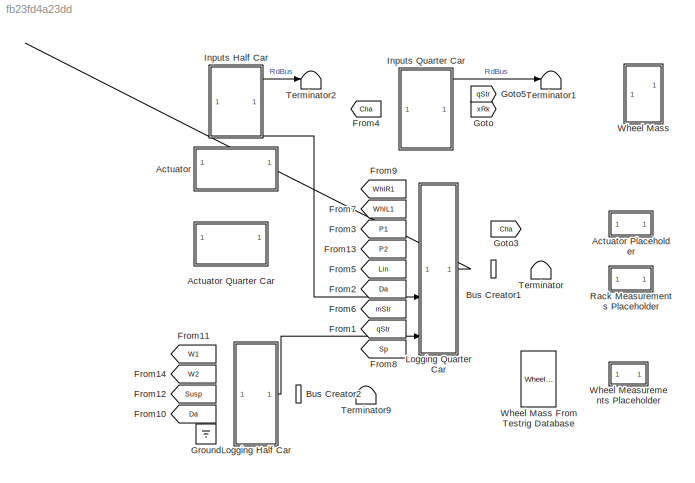
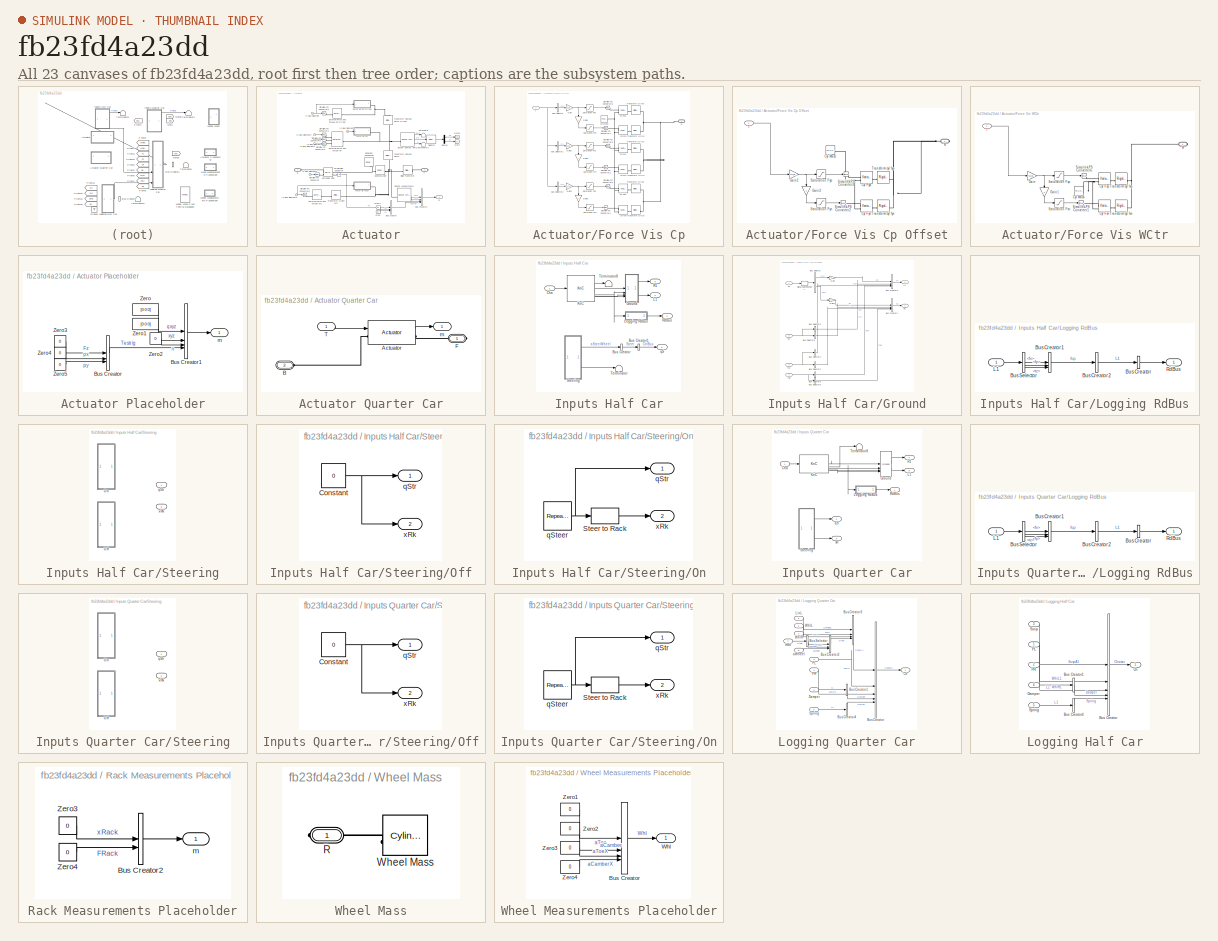
[diagram: thumbnail index - all 23 canvases of the model, root first then tree order]
MODEL slx_fb23fd4a23dd
KIND library
CONFIG AbsTol = auto
CONFIG EnableMultiTasking = off
CONFIG FixedStep = auto
CONFIG MaxStep = auto
CONFIG MinStep = auto
CONFIG RelTol = 1e-3
CONFIG SampleTimeConstraint = Unconstrained
CONFIG SolverName = VariableStepAuto
CONFIG StartTime = 0.0
CONFIG StopTime = 10.0
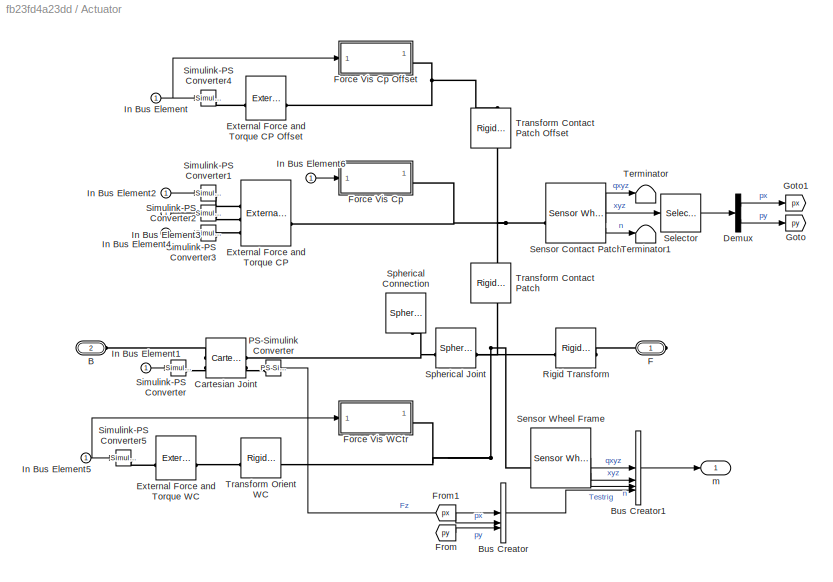
BLOCK [SubSystem] Actuator
BLOCK [SubSystem] Actuator Placeholder
BLOCK [BusCreator] Actuator Placeholder/Bus Creator
  DisplayOption = bar
  InheritFromInputs = on
  Inputs = 3
BLOCK [BusCreator] Actuator Placeholder/Bus Creator1
  DisplayOption = bar
  InheritFromInputs = on
  Inputs = 4
BLOCK [Constant] Actuator Placeholder/Zero
  OutDataTypeStr = Inherit: Inherit via back propagation
  Value = [0 0 0]
BLOCK [Constant] Actuator Placeholder/Zero1
  OutDataTypeStr = Inherit: Inherit via back propagation
  Value = [0 0 0]
BLOCK [Constant] Actuator Placeholder/Zero2
  OutDataTypeStr = Inherit: Inherit via back propagation
  Value = 0
BLOCK [Constant] Actuator Placeholder/Zero3
  OutDataTypeStr = Inherit: Inherit via back propagation
  Value = 0
BLOCK [Constant] Actuator Placeholder/Zero4
  OutDataTypeStr = Inherit: Inherit via back propagation
  Value = 0
BLOCK [Constant] Actuator Placeholder/Zero5
  OutDataTypeStr = Inherit: Inherit via back propagation
  Value = 0
BLOCK [Outport] Actuator Placeholder/m
BLOCK [SubSystem] Actuator Quarter Car
BLOCK [Reference] Actuator Quarter Car/Actuator  REF=$bdroot/Actuator
  SourceBlock = $bdroot/Actuator
  SourceType = KnC Actuator
BLOCK [PMIOPort] Actuator Quarter Car/B
  Port = 2
  Side = Left
BLOCK [PMIOPort] Actuator Quarter Car/F
  Side = Right
BLOCK [Inport] Actuator Quarter Car/T
BLOCK [Outport] Actuator Quarter Car/m
BLOCK [PMIOPort] Actuator/B
  Port = 2
  Side = Left
BLOCK [BusCreator] Actuator/Bus Creator
  DisplayOption = bar
  InheritFromInputs = on
  Inputs = 3
BLOCK [BusCreator] Actuator/Bus Creator1
  DisplayOption = bar
  InheritFromInputs = on
  Inputs = 4
BLOCK [Reference] Actuator/Cartesian Joint  REF=sm_lib/Joints/Cartesian
Joint
  SourceBlock = sm_lib/Joints/Cartesian\nJoint
  SourceType = Cartesian\nJoint
BLOCK [Demux] Actuator/Demux
  Outputs = 2
BLOCK [Reference] Actuator/External Force and Torque CP  REF=sm_lib/Forces and
Torques/External Force
and Torque
  SourceBlock = sm_lib/Forces and\nTorques/External Force\nand Torque
  SourceType = External Force\nand Torque
BLOCK [Reference] Actuator/External Force and Torque CP Offset  REF=sm_lib/Forces and
Torques/External Force
and Torque
  SourceBlock = sm_lib/Forces and\nTorques/External Force\nand Torque
  SourceType = External Force\nand Torque
BLOCK [Reference] Actuator/External Force and Torque WC  REF=sm_lib/Forces and
Torques/External Force
and Torque
  SourceBlock = sm_lib/Forces and\nTorques/External Force\nand Torque
  SourceType = External Force\nand Torque
BLOCK [PMIOPort] Actuator/F
  Side = Right
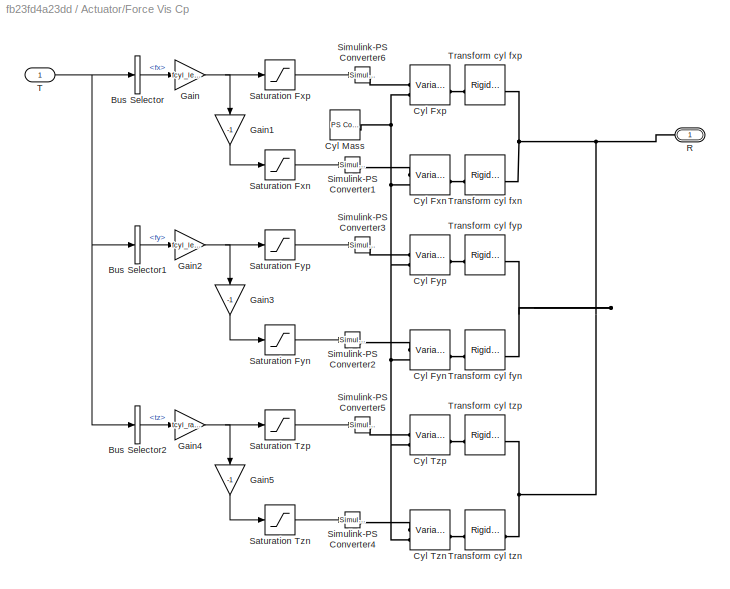
BLOCK [SubSystem] Actuator/Force Vis Cp
BLOCK [SubSystem] Actuator/Force Vis Cp Offset
BLOCK [Reference] Actuator/Force Vis Cp Offset/Cyl Fyn  REF=sm_lib/Body Elements/Variable Mass/Variable
Cylindrical Solid
  SourceBlock = sm_lib/Body Elements/Variable Mass/Variable\nCylindrical Solid
  SourceType = Variable\nCylindrical Solid
BLOCK [Reference] Actuator/Force Vis Cp Offset/Cyl Fyp  REF=sm_lib/Body Elements/Variable Mass/Variable
Cylindrical Solid
  SourceBlock = sm_lib/Body Elements/Variable Mass/Variable\nCylindrical Solid
  SourceType = Variable\nCylindrical Solid
BLOCK [Reference] Actuator/Force Vis Cp Offset/Cyl Mass  REF=fl_lib/Physical Signals/Sources/PS Constant
  NameLocation = left
  SourceBlock = fl_lib/Physical Signals/Sources/PS Constant
  SourceType = PS Constant
BLOCK [Gain] Actuator/Force Vis Cp Offset/Gain2
  Gain = fcyl_len/max(fy_max,1e-3)
BLOCK [Gain] Actuator/Force Vis Cp Offset/Gain3
  Gain = -1
  NameLocation = left
BLOCK [PMIOPort] Actuator/Force Vis Cp Offset/R
  Side = Right
BLOCK [Saturate] Actuator/Force Vis Cp Offset/Saturation Fyn
  LowerLimit = 0
  UpperLimit = inf
  ZeroCross = off
BLOCK [Saturate] Actuator/Force Vis Cp Offset/Saturation Fyp
  LowerLimit = 0
  UpperLimit = inf
  ZeroCross = off
BLOCK [Reference] Actuator/Force Vis Cp Offset/Simulink-PS Converter2  REF=nesl_utility/Simulink-PS
Converter
  SourceBlock = nesl_utility/Simulink-PS\nConverter
  SourceType = Simulink-PS\nConverter
BLOCK [Reference] Actuator/Force Vis Cp Offset/Simulink-PS Converter3  REF=nesl_utility/Simulink-PS
Converter
  SourceBlock = nesl_utility/Simulink-PS\nConverter
  SourceType = Simulink-PS\nConverter
BLOCK [Inport] Actuator/Force Vis Cp Offset/T
BLOCK [Reference] Actuator/Force Vis Cp Offset/Transform cyl fyn  REF=sm_lib/Frames and
Transforms/Rigid
Transform
  SourceBlock = sm_lib/Frames and\nTransforms/Rigid\nTransform
  SourceType = Rigid\nTransform
BLOCK [Reference] Actuator/Force Vis Cp Offset/Transform cyl fyp  REF=sm_lib/Frames and
Transforms/Rigid
Transform
  SourceBlock = sm_lib/Frames and\nTransforms/Rigid\nTransform
  SourceType = Rigid\nTransform
BLOCK [BusSelector] Actuator/Force Vis Cp/Bus Selector
  OutputSignals = fcp.fx
BLOCK [BusSelector] Actuator/Force Vis Cp/Bus Selector1
  OutputSignals = fcp.fy
BLOCK [BusSelector] Actuator/Force Vis Cp/Bus Selector2
  OutputSignals = fcp.tz
BLOCK [Reference] Actuator/Force Vis Cp/Cyl Fxn  REF=sm_lib/Body Elements/Variable Mass/Variable
Cylindrical Solid
  SourceBlock = sm_lib/Body Elements/Variable Mass/Variable\nCylindrical Solid
  SourceType = Variable\nCylindrical Solid
BLOCK [Reference] Actuator/Force Vis Cp/Cyl Fxp  REF=sm_lib/Body Elements/Variable Mass/Variable
Cylindrical Solid
  SourceBlock = sm_lib/Body Elements/Variable Mass/Variable\nCylindrical Solid
  SourceType = Variable\nCylindrical Solid
BLOCK [Reference] Actuator/Force Vis Cp/Cyl Fyn  REF=sm_lib/Body Elements/Variable Mass/Variable
Cylindrical Solid
  SourceBlock = sm_lib/Body Elements/Variable Mass/Variable\nCylindrical Solid
  SourceType = Variable\nCylindrical Solid
BLOCK [Reference] Actuator/Force Vis Cp/Cyl Fyp  REF=sm_lib/Body Elements/Variable Mass/Variable
Cylindrical Solid
  SourceBlock = sm_lib/Body Elements/Variable Mass/Variable\nCylindrical Solid
  SourceType = Variable\nCylindrical Solid
BLOCK [Reference] Actuator/Force Vis Cp/Cyl Mass  REF=fl_lib/Physical Signals/Sources/PS Constant
  NameLocation = left
  SourceBlock = fl_lib/Physical Signals/Sources/PS Constant
  SourceType = PS Constant
BLOCK [Reference] Actuator/Force Vis Cp/Cyl Tzn  REF=sm_lib/Body Elements/Variable Mass/Variable
Cylindrical Solid
  SourceBlock = sm_lib/Body Elements/Variable Mass/Variable\nCylindrical Solid
  SourceType = Variable\nCylindrical Solid
BLOCK [Reference] Actuator/Force Vis Cp/Cyl Tzp  REF=sm_lib/Body Elements/Variable Mass/Variable
Cylindrical Solid
  SourceBlock = sm_lib/Body Elements/Variable Mass/Variable\nCylindrical Solid
  SourceType = Variable\nCylindrical Solid
BLOCK [Gain] Actuator/Force Vis Cp/Gain
  Gain = fcyl_len/max(max_fx,1e-3)
BLOCK [Gain] Actuator/Force Vis Cp/Gain1
  Gain = -1
  NameLocation = left
BLOCK [Gain] Actuator/Force Vis Cp/Gain2
  Gain = fcyl_len/max(max_fy,1e-3)
BLOCK [Gain] Actuator/Force Vis Cp/Gain3
  Gain = -1
  NameLocation = left
BLOCK [Gain] Actuator/Force Vis Cp/Gain4
  Gain = tcyl_rad/max(max_tz,1e-3)
BLOCK [Gain] Actuator/Force Vis Cp/Gain5
  Gain = -1
  NameLocation = left
BLOCK [PMIOPort] Actuator/Force Vis Cp/R
  Side = Right
BLOCK [Saturate] Actuator/Force Vis Cp/Saturation Fxn
  LowerLimit = 0
  UpperLimit = inf
  ZeroCross = off
BLOCK [Saturate] Actuator/Force Vis Cp/Saturation Fxp
  LowerLimit = 0
  UpperLimit = inf
  ZeroCross = off
BLOCK [Saturate] Actuator/Force Vis Cp/Saturation Fyn
  LowerLimit = 0
  UpperLimit = inf
  ZeroCross = off
BLOCK [Saturate] Actuator/Force Vis Cp/Saturation Fyp
  LowerLimit = 0
  UpperLimit = inf
  ZeroCross = off
BLOCK [Saturate] Actuator/Force Vis Cp/Saturation Tzn
  LowerLimit = 0
  UpperLimit = inf
  ZeroCross = off
BLOCK [Saturate] Actuator/Force Vis Cp/Saturation Tzp
  LowerLimit = 0
  UpperLimit = inf
  ZeroCross = off
BLOCK [Reference] Actuator/Force Vis Cp/Simulink-PS Converter1  REF=nesl_utility/Simulink-PS
Converter
  SourceBlock = nesl_utility/Simulink-PS\nConverter
  SourceType = Simulink-PS\nConverter
BLOCK [Reference] Actuator/Force Vis Cp/Simulink-PS Converter2  REF=nesl_utility/Simulink-PS
Converter
  SourceBlock = nesl_utility/Simulink-PS\nConverter
  SourceType = Simulink-PS\nConverter
BLOCK [Reference] Actuator/Force Vis Cp/Simulink-PS Converter3  REF=nesl_utility/Simulink-PS
Converter
  SourceBlock = nesl_utility/Simulink-PS\nConverter
  SourceType = Simulink-PS\nConverter
BLOCK [Reference] Actuator/Force Vis Cp/Simulink-PS Converter4  REF=nesl_utility/Simulink-PS
Converter
  SourceBlock = nesl_utility/Simulink-PS\nConverter
  SourceType = Simulink-PS\nConverter
BLOCK [Reference] Actuator/Force Vis Cp/Simulink-PS Converter5  REF=nesl_utility/Simulink-PS
Converter
  SourceBlock = nesl_utility/Simulink-PS\nConverter
  SourceType = Simulink-PS\nConverter
BLOCK [Reference] Actuator/Force Vis Cp/Simulink-PS Converter6  REF=nesl_utility/Simulink-PS
Converter
  SourceBlock = nesl_utility/Simulink-PS\nConverter
  SourceType = Simulink-PS\nConverter
BLOCK [Inport] Actuator/Force Vis Cp/T
BLOCK [Reference] Actuator/Force Vis Cp/Transform cyl fxn  REF=sm_lib/Frames and
Transforms/Rigid
Transform
  SourceBlock = sm_lib/Frames and\nTransforms/Rigid\nTransform
  SourceType = Rigid\nTransform
BLOCK [Reference] Actuator/Force Vis Cp/Transform cyl fxp  REF=sm_lib/Frames and
Transforms/Rigid
Transform
  SourceBlock = sm_lib/Frames and\nTransforms/Rigid\nTransform
  SourceType = Rigid\nTransform
BLOCK [Reference] Actuator/Force Vis Cp/Transform cyl fyn  REF=sm_lib/Frames and
Transforms/Rigid
Transform
  SourceBlock = sm_lib/Frames and\nTransforms/Rigid\nTransform
  SourceType = Rigid\nTransform
BLOCK [Reference] Actuator/Force Vis Cp/Transform cyl fyp  REF=sm_lib/Frames and
Transforms/Rigid
Transform
  SourceBlock = sm_lib/Frames and\nTransforms/Rigid\nTransform
  SourceType = Rigid\nTransform
BLOCK [Reference] Actuator/Force Vis Cp/Transform cyl tzn  REF=sm_lib/Frames and
Transforms/Rigid
Transform
  SourceBlock = sm_lib/Frames and\nTransforms/Rigid\nTransform
  SourceType = Rigid\nTransform
BLOCK [Reference] Actuator/Force Vis Cp/Transform cyl tzp  REF=sm_lib/Frames and
Transforms/Rigid
Transform
  SourceBlock = sm_lib/Frames and\nTransforms/Rigid\nTransform
  SourceType = Rigid\nTransform
BLOCK [SubSystem] Actuator/Force Vis WCtr
BLOCK [Reference] Actuator/Force Vis WCtr/Cyl Fxn  REF=sm_lib/Body Elements/Variable Mass/Variable
Cylindrical Solid
  SourceBlock = sm_lib/Body Elements/Variable Mass/Variable\nCylindrical Solid
  SourceType = Variable\nCylindrical Solid
BLOCK [Reference] Actuator/Force Vis WCtr/Cyl Fxp  REF=sm_lib/Body Elements/Variable Mass/Variable
Cylindrical Solid
  SourceBlock = sm_lib/Body Elements/Variable Mass/Variable\nCylindrical Solid
  SourceType = Variable\nCylindrical Solid
BLOCK [Reference] Actuator/Force Vis WCtr/Cyl Mass  REF=fl_lib/Physical Signals/Sources/PS Constant
  NameLocation = left
  SourceBlock = fl_lib/Physical Signals/Sources/PS Constant
  SourceType = PS Constant
BLOCK [Gain] Actuator/Force Vis WCtr/Gain
  Gain = fcyl_len/max(max_fx,1e-3)
BLOCK [Gain] Actuator/Force Vis WCtr/Gain1
  Gain = -1
  NameLocation = left
BLOCK [PMIOPort] Actuator/Force Vis WCtr/R
  Side = Right
BLOCK [Saturate] Actuator/Force Vis WCtr/Saturation Fxn
  LowerLimit = 0
  UpperLimit = inf
  ZeroCross = off
BLOCK [Saturate] Actuator/Force Vis WCtr/Saturation Fxp
  LowerLimit = 0
  UpperLimit = inf
  ZeroCross = off
BLOCK [Reference] Actuator/Force Vis WCtr/Simulink-PS Converter1  REF=nesl_utility/Simulink-PS
Converter
  SourceBlock = nesl_utility/Simulink-PS\nConverter
  SourceType = Simulink-PS\nConverter
BLOCK [Reference] Actuator/Force Vis WCtr/Simulink-PS Converter6  REF=nesl_utility/Simulink-PS
Converter
  SourceBlock = nesl_utility/Simulink-PS\nConverter
  SourceType = Simulink-PS\nConverter
BLOCK [Inport] Actuator/Force Vis WCtr/T
BLOCK [Reference] Actuator/Force Vis WCtr/Transform cyl fxn  REF=sm_lib/Frames and
Transforms/Rigid
Transform
  SourceBlock = sm_lib/Frames and\nTransforms/Rigid\nTransform
  SourceType = Rigid\nTransform
BLOCK [Reference] Actuator/Force Vis WCtr/Transform cyl fxp  REF=sm_lib/Frames and
Transforms/Rigid
Transform
  SourceBlock = sm_lib/Frames and\nTransforms/Rigid\nTransform
  SourceType = Rigid\nTransform
BLOCK [From] Actuator/From
  GotoTag = py
BLOCK [From] Actuator/From1
  GotoTag = px
BLOCK [Goto] Actuator/Goto
  GotoTag = py
BLOCK [Goto] Actuator/Goto1
  GotoTag = px
BLOCK [Inport] Actuator/In Bus Element
BLOCK [Inport] Actuator/In Bus Element1
BLOCK [Inport] Actuator/In Bus Element2
BLOCK [Inport] Actuator/In Bus Element3
BLOCK [Inport] Actuator/In Bus Element4
BLOCK [Inport] Actuator/In Bus Element5
BLOCK [Inport] Actuator/In Bus Element6
BLOCK [Reference] Actuator/PS-Simulink Converter  REF=nesl_utility/PS-Simulink
Converter
  SourceBlock = nesl_utility/PS-Simulink\nConverter
  SourceType = PS-Simulink\nConverter
BLOCK [Reference] Actuator/Rigid Transform  REF=sm_lib/Frames and
Transforms/Rigid
Transform
  SourceBlock = sm_lib/Frames and\nTransforms/Rigid\nTransform
  SourceType = Rigid\nTransform
BLOCK [Selector] Actuator/Selector
  IndexOptions = Index vector (dialog)
  Indices = [1 2]
  InputPortWidth = 3
  OutputSizes = 1
BLOCK [Reference] Actuator/Sensor Contact Patch  REF=Tire_Utilities/Sensor Wheel Frame
  NameLocation = top
  SourceBlock = Tire_Utilities/Sensor Wheel Frame
  SourceType = SubSystem
BLOCK [Reference] Actuator/Sensor Wheel Frame  REF=Tire_Utilities/Sensor Wheel Frame
  NameLocation = top
  SourceBlock = Tire_Utilities/Sensor Wheel Frame
  SourceType = SubSystem
BLOCK [Reference] Actuator/Simulink-PS Converter  REF=nesl_utility/Simulink-PS
Converter
  SourceBlock = nesl_utility/Simulink-PS\nConverter
  SourceType = Simulink-PS\nConverter
BLOCK [Reference] Actuator/Simulink-PS Converter1  REF=nesl_utility/Simulink-PS
Converter
  SourceBlock = nesl_utility/Simulink-PS\nConverter
  SourceType = Simulink-PS\nConverter
BLOCK [Reference] Actuator/Simulink-PS Converter2  REF=nesl_utility/Simulink-PS
Converter
  SourceBlock = nesl_utility/Simulink-PS\nConverter
  SourceType = Simulink-PS\nConverter
BLOCK [Reference] Actuator/Simulink-PS Converter3  REF=nesl_utility/Simulink-PS
Converter
  SourceBlock = nesl_utility/Simulink-PS\nConverter
  SourceType = Simulink-PS\nConverter
BLOCK [Reference] Actuator/Simulink-PS Converter4  REF=nesl_utility/Simulink-PS
Converter
  SourceBlock = nesl_utility/Simulink-PS\nConverter
  SourceType = Simulink-PS\nConverter
BLOCK [Reference] Actuator/Simulink-PS Converter5  REF=nesl_utility/Simulink-PS
Converter
  SourceBlock = nesl_utility/Simulink-PS\nConverter
  SourceType = Simulink-PS\nConverter
BLOCK [Reference] Actuator/Spherical Connection  REF=sm_lib/Body Elements/Spherical Solid
  NameLocation = left
  SourceBlock = sm_lib/Body Elements/Spherical Solid
  SourceType = Spherical Solid
BLOCK [Reference] Actuator/Spherical Joint  REF=sm_lib/Joints/Spherical
Joint
  SourceBlock = sm_lib/Joints/Spherical\nJoint
  SourceType = Spherical\nJoint
BLOCK [Terminator] Actuator/Terminator
BLOCK [Terminator] Actuator/Terminator1
BLOCK [Reference] Actuator/Transform Contact Patch  REF=sm_lib/Frames and
Transforms/Rigid
Transform
  NameLocation = right
  SourceBlock = sm_lib/Frames and\nTransforms/Rigid\nTransform
  SourceType = Rigid\nTransform
BLOCK [Reference] Actuator/Transform Contact Patch Offset  REF=sm_lib/Frames and
Transforms/Rigid
Transform
  NameLocation = right
  SourceBlock = sm_lib/Frames and\nTransforms/Rigid\nTransform
  SourceType = Rigid\nTransform
BLOCK [Reference] Actuator/Transform Orient WC  REF=sm_lib/Frames and
Transforms/Rigid
Transform
  SourceBlock = sm_lib/Frames and\nTransforms/Rigid\nTransform
  SourceType = Rigid\nTransform
BLOCK [Outport] Actuator/m
  VectorParamsAs1DForOutWhenUnconnected = off
BLOCK [BusCreator] Bus Creator1
  DisplayOption = bar
  InheritFromInputs = on
  Inputs = 1
  NameLocation = left
BLOCK [BusCreator] Bus Creator2
  DisplayOption = bar
  InheritFromInputs = on
  Inputs = 1
BLOCK [From] From1
  GotoTag = qStr
BLOCK [From] From10
  GotoTag = Da
BLOCK [From] From11
  GotoTag = W1
BLOCK [From] From12
  GotoTag = Susp
BLOCK [From] From13
  GotoTag = P2
BLOCK [From] From14
  GotoTag = W2
BLOCK [From] From2
  GotoTag = Da
BLOCK [From] From3
  GotoTag = P1
BLOCK [From] From4
  GotoTag = Cha
BLOCK [From] From5
  GotoTag = Lin
BLOCK [From] From6
  GotoTag = mStr
BLOCK [From] From7
  GotoTag = WhlL1
BLOCK [From] From8
  GotoTag = Sp
BLOCK [From] From9
  GotoTag = WhlR1
BLOCK [Goto] Goto
  GotoTag = xRk
BLOCK [Goto] Goto3
  GotoTag = Cha
BLOCK [Goto] Goto5
  GotoTag = qStr
  NameLocation = top
BLOCK [Ground] Ground
BLOCK [SubSystem] Inputs Half Car
  NameLocation = top
BLOCK [BusCreator] Inputs Half Car/Bus Creator
  DisplayOption = bar
  InheritFromInputs = on
  Inputs = 1
BLOCK [BusCreator] Inputs Half Car/Bus Creator1
  DisplayOption = bar
  InheritFromInputs = on
  Inputs = 1
BLOCK [Inport] Inputs Half Car/Cha
BLOCK [SubSystem] Inputs Half Car/Ground
BLOCK [BusCreator] Inputs Half Car/Ground/Bus Creator1
  DisplayOption = bar
  InheritFromInputs = on
  Inputs = 4
BLOCK [BusCreator] Inputs Half Car/Ground/Bus Creator3
  DisplayOption = bar
  InheritFromInputs = on
  Inputs = 4
BLOCK [BusSelector] Inputs Half Car/Ground/Bus Selector
  OutputSignals = L1,R1
BLOCK [BusSelector] Inputs Half Car/Ground/Bus Selector1
  OutputAsBus = on
  OutputSignals = L1.fcoy
BLOCK [BusSelector] Inputs Half Car/Ground/Bus Selector2
  OutputAsBus = on
  OutputSignals = L1.fx,L1.fy,L1.tz
BLOCK [BusSelector] Inputs Half Car/Ground/Bus Selector3
  OutputAsBus = on
  OutputSignals = R1.fx,R1.fy,R1.tz
BLOCK [BusSelector] Inputs Half Car/Ground/Bus Selector4
  OutputAsBus = on
  OutputSignals = R1.fcoy
BLOCK [BusSelector] Inputs Half Car/Ground/Bus Selector5
  OutputAsBus = on
  OutputSignals = L1.fwcx
BLOCK [BusSelector] Inputs Half Car/Ground/Bus Selector6
  OutputAsBus = on
  OutputSignals = R1.fwcx
BLOCK [Gain] Inputs Half Car/Ground/Gain
BLOCK [Gain] Inputs Half Car/Ground/Gain1
BLOCK [Outport] Inputs Half Car/Ground/L1
  Port = 2
  VectorParamsAs1DForOutWhenUnconnected = off
BLOCK [Outport] Inputs Half Car/Ground/R1
  VectorParamsAs1DForOutWhenUnconnected = off
BLOCK [SignalSpecification] Inputs Half Car/Ground/Signal Specification1
  Unit = m
BLOCK [Inport] Inputs Half Car/Ground/fco
  Port = 3
BLOCK [Inport] Inputs Half Car/Ground/fcp
  Port = 2
BLOCK [Inport] Inputs Half Car/Ground/fwc
  Port = 4
BLOCK [Inport] Inputs Half Car/Ground/gz
BLOCK [Reference] Inputs Half Car/KnC  REF=Surface_Profile_Axle2_KnC/KnC
  SourceBlock = Surface_Profile_Axle2_KnC/KnC
  SourceType = SubSystem
BLOCK [Outport] Inputs Half Car/L1
  Port = 4
BLOCK [SubSystem] Inputs Half Car/Logging RdBus
BLOCK [BusCreator] Inputs Half Car/Logging RdBus/Bus Creator
  DisplayOption = bar
  InheritFromInputs = on
  Inputs = 1
  NameLocation = top
BLOCK [BusCreator] Inputs Half Car/Logging RdBus/Bus Creator1
  DisplayOption = bar
  InheritFromInputs = on
  Inputs = 3
BLOCK [BusCreator] Inputs Half Car/Logging RdBus/Bus Creator2
  DisplayOption = bar
  InheritFromInputs = on
  Inputs = 1
  NameLocation = top
BLOCK [BusSelector] Inputs Half Car/Logging RdBus/Bus Selector
  OutputSignals = L1.fx,L1.fy,L1.tz
BLOCK [Inport] Inputs Half Car/Logging RdBus/L1
BLOCK [Outport] Inputs Half Car/Logging RdBus/RdBus
BLOCK [Outport] Inputs Half Car/R1
  Port = 3
BLOCK [Outport] Inputs Half Car/RdBus
BLOCK [SubSystem] Inputs Half Car/Steering
  LabelModeActiveChoice = On
  Variant = on
  VariantControl = Choice
  VariantControlMode = label
BLOCK [SubSystem] Inputs Half Car/Steering/Off
  VariantControl = Off
BLOCK [Constant] Inputs Half Car/Steering/Off/Constant
  Value = 0
BLOCK [Outport] Inputs Half Car/Steering/Off/qStr
BLOCK [Outport] Inputs Half Car/Steering/Off/xRk
  Port = 2
BLOCK [SubSystem] Inputs Half Car/Steering/On
  VariantControl = On
BLOCK [Lookup_n-D] Inputs Half Car/Steering/On/Steer to Rack
  BreakpointsForDimension1 = Vehicle.Chassis.SuspA1.Steer.Ratio_Table.aWheel.Value
  InputPortMap = u0
  InternalRulePriority = Speed
  NumberOfTableDimensions = 1
  RndMeth = Simplest
  Table = Vehicle.Chassis.SuspA1.Steer.Ratio_Table.xRack.Value
BLOCK [Reference] Inputs Half Car/Steering/On/qSteer  REF=simulink/Sources/Repeating
Sequence
  SourceBlock = simulink/Sources/Repeating\nSequence
  SourceType = Repeating table
BLOCK [Outport] Inputs Half Car/Steering/On/qStr
BLOCK [Outport] Inputs Half Car/Steering/On/xRk
  Port = 2
BLOCK [Outport] Inputs Half Car/Steering/qStr
BLOCK [Outport] Inputs Half Car/Steering/xRk
  Port = 2
BLOCK [Terminator] Inputs Half Car/Terminator
BLOCK [Terminator] Inputs Half Car/Terminator8
BLOCK [Outport] Inputs Half Car/qS
  Port = 2
BLOCK [SubSystem] Inputs Quarter Car
  NameLocation = top
BLOCK [Inport] Inputs Quarter Car/Cha
BLOCK [Reference] Inputs Quarter Car/Ground  REF=$bdroot/Inputs Half Car/Ground
  SourceBlock = $bdroot/Inputs Half Car/Ground
  SourceType = SubSystem
BLOCK [Reference] Inputs Quarter Car/KnC  REF=Surface_Profile_Axle2_KnC/KnC
  SourceBlock = Surface_Profile_Axle2_KnC/KnC
  SourceType = SubSystem
BLOCK [Outport] Inputs Quarter Car/L1
  Port = 5
BLOCK [SubSystem] Inputs Quarter Car/Logging RdBus
BLOCK [BusCreator] Inputs Quarter Car/Logging RdBus/Bus Creator
  DisplayOption = bar
  InheritFromInputs = on
  Inputs = 1
  NameLocation = top
BLOCK [BusCreator] Inputs Quarter Car/Logging RdBus/Bus Creator1
  DisplayOption = bar
  InheritFromInputs = on
  Inputs = 3
BLOCK [BusCreator] Inputs Quarter Car/Logging RdBus/Bus Creator2
  DisplayOption = bar
  InheritFromInputs = on
  Inputs = 1
  NameLocation = top
BLOCK [BusSelector] Inputs Quarter Car/Logging RdBus/Bus Selector
  OutputSignals = L1.fx,L1.fy,L1.tz
BLOCK [Inport] Inputs Quarter Car/Logging RdBus/L1
BLOCK [Outport] Inputs Quarter Car/Logging RdBus/RdBus
BLOCK [Outport] Inputs Quarter Car/R1
  Port = 4
BLOCK [Outport] Inputs Quarter Car/RdBus
BLOCK [SubSystem] Inputs Quarter Car/Steering
  LabelModeActiveChoice = On
  Variant = on
  VariantControl = Choice
  VariantControlMode = label
BLOCK [SubSystem] Inputs Quarter Car/Steering/Off
  VariantControl = Off
BLOCK [Constant] Inputs Quarter Car/Steering/Off/Constant
  Value = 0
BLOCK [Outport] Inputs Quarter Car/Steering/Off/qStr
BLOCK [Outport] Inputs Quarter Car/Steering/Off/xRk
  Port = 2
BLOCK [SubSystem] Inputs Quarter Car/Steering/On
  VariantControl = On
BLOCK [Lookup_n-D] Inputs Quarter Car/Steering/On/Steer to Rack
  BreakpointsForDimension1 = Vehicle.Chassis.SuspA1.Steer.Ratio_Table.aWheel.Value
  InputPortMap = u0
  InternalRulePriority = Speed
  NumberOfTableDimensions = 1
  RndMeth = Simplest
  Table = Vehicle.Chassis.SuspA1.Steer.Ratio_Table.xRack.Value
BLOCK [Reference] Inputs Quarter Car/Steering/On/qSteer  REF=simulink/Sources/Repeating
Sequence
  SourceBlock = simulink/Sources/Repeating\nSequence
  SourceType = Repeating table
BLOCK [Outport] Inputs Quarter Car/Steering/On/qStr
BLOCK [Outport] Inputs Quarter Car/Steering/On/xRk
  Port = 2
BLOCK [Outport] Inputs Quarter Car/Steering/qStr
BLOCK [Outport] Inputs Quarter Car/Steering/xRk
  Port = 2
BLOCK [Terminator] Inputs Quarter Car/Terminator8
BLOCK [Outport] Inputs Quarter Car/qS
  Port = 2
BLOCK [Outport] Inputs Quarter Car/xR
  Port = 3
BLOCK [SubSystem] Logging Half Car
BLOCK [BusCreator] Logging Half Car/Bus Creator
  DisplayOption = bar
  InheritFromInputs = on
  Inputs = 5
BLOCK [BusCreator] Logging Half Car/Bus Creator1
  DisplayOption = bar
  InheritFromInputs = on
  Inputs = 1
BLOCK [BusCreator] Logging Half Car/Bus Creator4
  DisplayOption = bar
  InheritFromInputs = on
  Inputs = 1
BLOCK [Outport] Logging Half Car/Ch
BLOCK [Inport] Logging Half Car/Damper
  Port = 4
BLOCK [Inport] Logging Half Car/PL
BLOCK [Inport] Logging Half Car/PR
  Port = 2
BLOCK [Inport] Logging Half Car/Spring
  Port = 5
BLOCK [Inport] Logging Half Car/Susp
  NameLocation = left
  Port = 3
BLOCK [SubSystem] Logging Quarter Car
BLOCK [BusCreator] Logging Quarter Car/Bus Creator
  DisplayOption = bar
  InheritFromInputs = on
  Inputs = 5
BLOCK [BusCreator] Logging Quarter Car/Bus Creator1
  DisplayOption = bar
  InheritFromInputs = on
  Inputs = 1
BLOCK [BusCreator] Logging Quarter Car/Bus Creator2
  DisplayOption = bar
  InheritFromInputs = on
  Inputs = 3
BLOCK [BusCreator] Logging Quarter Car/Bus Creator3
  DisplayOption = bar
  InheritFromInputs = on
  Inputs = 4
BLOCK [BusCreator] Logging Quarter Car/Bus Creator4
  DisplayOption = bar
  InheritFromInputs = on
  Inputs = 1
BLOCK [BusSelector] Logging Quarter Car/Bus Selector
  OutputSignals = xRack,FRack
BLOCK [Outport] Logging Quarter Car/Ch
BLOCK [Inport] Logging Quarter Car/Damper
  Port = 6
BLOCK [Inport] Logging Quarter Car/LinL
  NameLocation = left
  Port = 5
BLOCK [Inport] Logging Quarter Car/PL
  NameLocation = left
  Port = 3
BLOCK [Inport] Logging Quarter Car/PR
  NameLocation = left
  Port = 4
BLOCK [Inport] Logging Quarter Car/Spring
  Port = 9
BLOCK [Inport] Logging Quarter Car/WhlL
  NameLocation = left
  Port = 2
BLOCK [Inport] Logging Quarter Car/WhlR
  NameLocation = left
BLOCK [Inport] Logging Quarter Car/aWheel
  NameLocation = left
  Port = 8
BLOCK [Inport] Logging Quarter Car/mStr
  NameLocation = left
  Port = 7
BLOCK [SubSystem] Rack Measurements Placeholder
BLOCK [BusCreator] Rack Measurements Placeholder/Bus Creator2
  DisplayOption = bar
  InheritFromInputs = on
  Inputs = 2
BLOCK [Constant] Rack Measurements Placeholder/Zero3
  OutDataTypeStr = Inherit: Inherit via back propagation
  Value = 0
BLOCK [Constant] Rack Measurements Placeholder/Zero4
  OutDataTypeStr = Inherit: Inherit via back propagation
  Value = 0
BLOCK [Outport] Rack Measurements Placeholder/m
BLOCK [Terminator] Terminator
BLOCK [Terminator] Terminator1
BLOCK [Terminator] Terminator2
BLOCK [Terminator] Terminator9
BLOCK [SubSystem] Wheel Mass
BLOCK [Reference] Wheel Mass From Testrig Database  REF=$bdroot/Wheel Mass
  Commented = on
  SourceBlock = $bdroot/Wheel Mass
BLOCK [PMIOPort] Wheel Mass/R
  Side = Right
BLOCK [Reference] Wheel Mass/Wheel Mass  REF=sm_lib/Body Elements/Cylindrical Solid
  SourceBlock = sm_lib/Body Elements/Cylindrical Solid
  SourceType = Cylindrical Solid
BLOCK [SubSystem] Wheel Measurements Placeholder
BLOCK [BusCreator] Wheel Measurements Placeholder/Bus Creator
  DisplayOption = bar
  InheritFromInputs = on
  Inputs = 4
BLOCK [Outport] Wheel Measurements Placeholder/Whl
BLOCK [Constant] Wheel Measurements Placeholder/Zero1
  OutDataTypeStr = Inherit: Inherit via back propagation
  Value = 0
BLOCK [Constant] Wheel Measurements Placeholder/Zero2
  OutDataTypeStr = Inherit: Inherit via back propagation
  Value = 0
BLOCK [Constant] Wheel Measurements Placeholder/Zero3
  OutDataTypeStr = Inherit: Inherit via back propagation
  Value = 0
BLOCK [Constant] Wheel Measurements Placeholder/Zero4
  OutDataTypeStr = Inherit: Inherit via back propagation
  Value = 0
LINE Actuator Placeholder/Bus Creator1:1 -> Actuator Placeholder/m:1
LINE Actuator Placeholder/Bus Creator:1 -> Actuator Placeholder/Bus Creator1:4
LINE Actuator Placeholder/Zero1:1 -> Actuator Placeholder/Bus Creator1:2
LINE Actuator Placeholder/Zero2:1 -> Actuator Placeholder/Bus Creator1:3
LINE Actuator Placeholder/Zero3:1 -> Actuator Placeholder/Bus Creator:1
LINE Actuator Placeholder/Zero4:1 -> Actuator Placeholder/Bus Creator:2
LINE Actuator Placeholder/Zero5:1 -> Actuator Placeholder/Bus Creator:3
LINE Actuator Placeholder/Zero:1 -> Actuator Placeholder/Bus Creator1:1
LINE Actuator Quarter Car/Actuator:1 -> Actuator Quarter Car/m:1
LINE Actuator Quarter Car/T:1 -> Actuator Quarter Car/Actuator:1
LINE Actuator/Bus Creator1:1 -> Actuator/m:1
LINE Actuator/Bus Creator:1 -> Actuator/Bus Creator1:4
LINE Actuator/Demux:1 -> Actuator/Goto1:1
LINE Actuator/Demux:2 -> Actuator/Goto:1
NET Actuator/Force Vis Cp Offset/Gain2:1 -> Actuator/Force Vis Cp Offset/Gain3:1, Actuator/Force Vis Cp Offset/Saturation Fyp:1
LINE Actuator/Force Vis Cp Offset/Gain3:1 -> Actuator/Force Vis Cp Offset/Saturation Fyn:1
LINE Actuator/Force Vis Cp Offset/Saturation Fyn:1 -> Actuator/Force Vis Cp Offset/Simulink-PS Converter2:1
LINE Actuator/Force Vis Cp Offset/Saturation Fyp:1 -> Actuator/Force Vis Cp Offset/Simulink-PS Converter3:1
LINE Actuator/Force Vis Cp Offset/T:1 -> Actuator/Force Vis Cp Offset/Gain2:1
LINE Actuator/Force Vis Cp/Bus Selector1:1 -> Actuator/Force Vis Cp/Gain2:1
LINE Actuator/Force Vis Cp/Bus Selector2:1 -> Actuator/Force Vis Cp/Gain4:1
LINE Actuator/Force Vis Cp/Bus Selector:1 -> Actuator/Force Vis Cp/Gain:1
LINE Actuator/Force Vis Cp/Gain1:1 -> Actuator/Force Vis Cp/Saturation Fxn:1
NET Actuator/Force Vis Cp/Gain2:1 -> Actuator/Force Vis Cp/Gain3:1, Actuator/Force Vis Cp/Saturation Fyp:1
LINE Actuator/Force Vis Cp/Gain3:1 -> Actuator/Force Vis Cp/Saturation Fyn:1
NET Actuator/Force Vis Cp/Gain4:1 -> Actuator/Force Vis Cp/Gain5:1, Actuator/Force Vis Cp/Saturation Tzp:1
LINE Actuator/Force Vis Cp/Gain5:1 -> Actuator/Force Vis Cp/Saturation Tzn:1
NET Actuator/Force Vis Cp/Gain:1 -> Actuator/Force Vis Cp/Gain1:1, Actuator/Force Vis Cp/Saturation Fxp:1
LINE Actuator/Force Vis Cp/Saturation Fxn:1 -> Actuator/Force Vis Cp/Simulink-PS Converter1:1
LINE Actuator/Force Vis Cp/Saturation Fxp:1 -> Actuator/Force Vis Cp/Simulink-PS Converter6:1
LINE Actuator/Force Vis Cp/Saturation Fyn:1 -> Actuator/Force Vis Cp/Simulink-PS Converter2:1
LINE Actuator/Force Vis Cp/Saturation Fyp:1 -> Actuator/Force Vis Cp/Simulink-PS Converter3:1
LINE Actuator/Force Vis Cp/Saturation Tzn:1 -> Actuator/Force Vis Cp/Simulink-PS Converter4:1
LINE Actuator/Force Vis Cp/Saturation Tzp:1 -> Actuator/Force Vis Cp/Simulink-PS Converter5:1
NET Actuator/Force Vis Cp/T:1 -> Actuator/Force Vis Cp/Bus Selector1:1, Actuator/Force Vis Cp/Bus Selector2:1, Actuator/Force Vis Cp/Bus Selector:1
LINE Actuator/Force Vis WCtr/Gain1:1 -> Actuator/Force Vis WCtr/Saturation Fxn:1
NET Actuator/Force Vis WCtr/Gain:1 -> Actuator/Force Vis WCtr/Gain1:1, Actuator/Force Vis WCtr/Saturation Fxp:1
LINE Actuator/Force Vis WCtr/Saturation Fxn:1 -> Actuator/Force Vis WCtr/Simulink-PS Converter1:1
LINE Actuator/Force Vis WCtr/Saturation Fxp:1 -> Actuator/Force Vis WCtr/Simulink-PS Converter6:1
LINE Actuator/Force Vis WCtr/T:1 -> Actuator/Force Vis WCtr/Gain:1
LINE Actuator/From1:1 -> Actuator/Bus Creator:2
LINE Actuator/From:1 -> Actuator/Bus Creator:3
LINE Actuator/In Bus Element1:1 -> Actuator/Simulink-PS Converter:1
LINE Actuator/In Bus Element2:1 -> Actuator/Simulink-PS Converter1:1
LINE Actuator/In Bus Element3:1 -> Actuator/Simulink-PS Converter2:1
LINE Actuator/In Bus Element4:1 -> Actuator/Simulink-PS Converter3:1
NET Actuator/In Bus Element5:1 -> Actuator/Force Vis WCtr:1, Actuator/Simulink-PS Converter5:1
LINE Actuator/In Bus Element6:1 -> Actuator/Force Vis Cp:1
NET Actuator/In Bus Element:1 -> Actuator/Force Vis Cp Offset:1, Actuator/Simulink-PS Converter4:1
LINE Actuator/PS-Simulink Converter:1 -> Actuator/Bus Creator:1
LINE Actuator/Selector:1 -> Actuator/Demux:1
LINE Actuator/Sensor Contact Patch:1 -> Actuator/Terminator:1
LINE Actuator/Sensor Contact Patch:2 -> Actuator/Selector:1
LINE Actuator/Sensor Contact Patch:3 -> Actuator/Terminator1:1
LINE Actuator/Sensor Wheel Frame:1 -> Actuator/Bus Creator1:1
LINE Actuator/Sensor Wheel Frame:2 -> Actuator/Bus Creator1:2
LINE Actuator/Sensor Wheel Frame:3 -> Actuator/Bus Creator1:3
LINE Inputs Half Car:1 -> Terminator2:1
LINE Inputs Quarter Car:1 -> Terminator1:1
LINE Logging Half Car/Bus Creator1:1 -> Logging Half Car/Bus Creator:4
LINE Logging Half Car/Bus Creator4:1 -> Logging Half Car/Bus Creator:5
LINE Logging Half Car/Bus Creator:1 -> Logging Half Car/Ch:1
LINE Logging Half Car/Damper:1 -> Logging Half Car/Bus Creator1:1
LINE Logging Half Car/PL:1 -> Logging Half Car/Bus Creator:2
LINE Logging Half Car/PR:1 -> Logging Half Car/Bus Creator:3
LINE Logging Half Car/Spring:1 -> Logging Half Car/Bus Creator4:1
LINE Logging Half Car/Susp:1 -> Logging Half Car/Bus Creator:1
LINE Logging Half Car:1 -> Logging Quarter Car:9
LINE Logging Quarter Car/Bus Creator1:1 -> Logging Quarter Car/Bus Creator:4
LINE Logging Quarter Car/Bus Creator2:1 -> Logging Quarter Car/Bus Creator3:4
LINE Logging Quarter Car/Bus Creator3:1 -> Logging Quarter Car/Bus Creator:1
LINE Logging Quarter Car/Bus Creator4:1 -> Logging Quarter Car/Bus Creator:5
LINE Logging Quarter Car/Bus Creator:1 -> Logging Quarter Car/Ch:1
LINE Logging Quarter Car/Bus Selector:1 -> Logging Quarter Car/Bus Creator2:1
LINE Logging Quarter Car/Bus Selector:2 -> Logging Quarter Car/Bus Creator2:2
LINE Logging Quarter Car/Damper:1 -> Logging Quarter Car/Bus Creator1:1
LINE Logging Quarter Car/LinL:1 -> Logging Quarter Car/Bus Creator3:1
LINE Logging Quarter Car/PL:1 -> Logging Quarter Car/Bus Creator:2
LINE Logging Quarter Car/PR:1 -> Logging Quarter Car/Bus Creator:3
LINE Logging Quarter Car/Spring:1 -> Logging Quarter Car/Bus Creator4:1
LINE Logging Quarter Car/WhlL:1 -> Logging Quarter Car/Bus Creator3:2
LINE Logging Quarter Car/WhlR:1 -> Logging Quarter Car/Bus Creator3:3
LINE Logging Quarter Car/aWheel:1 -> Logging Quarter Car/Bus Creator2:3
LINE Logging Quarter Car/mStr:1 -> Logging Quarter Car/Bus Selector:1
LINE Logging Quarter Car:1 -> Logging Quarter Car:2
LINE Rack Measurements Placeholder/Bus Creator2:1 -> Rack Measurements Placeholder/m:1
LINE Rack Measurements Placeholder/Zero3:1 -> Rack Measurements Placeholder/Bus Creator2:1
LINE Rack Measurements Placeholder/Zero4:1 -> Rack Measurements Placeholder/Bus Creator2:2
LINE Wheel Measurements Placeholder/Bus Creator:1 -> Wheel Measurements Placeholder/Whl:1
LINE Wheel Measurements Placeholder/Zero1:1 -> Wheel Measurements Placeholder/Bus Creator:1
LINE Wheel Measurements Placeholder/Zero2:1 -> Wheel Measurements Placeholder/Bus Creator:2
LINE Wheel Measurements Placeholder/Zero3:1 -> Wheel Measurements Placeholder/Bus Creator:3
LINE Wheel Measurements Placeholder/Zero4:1 -> Wheel Measurements Placeholder/Bus Creator:4
PLINE Actuator Quarter Car/Actuator:LConn1 -- Actuator Quarter Car/B:RConn1
PLINE Actuator Quarter Car/Actuator:RConn1 -- Actuator Quarter Car/F:RConn1
PLINE Actuator/B:RConn1 -- Actuator/Cartesian Joint:LConn1
PLINE Actuator/Cartesian Joint:LConn2 -- Actuator/Simulink-PS Converter:RConn1
PNET net1: Actuator/Cartesian Joint:RConn1 -- Actuator/Spherical Connection:RConn1 -- Actuator/Spherical Joint:LConn1
PLINE Actuator/Cartesian Joint:RConn2 -- Actuator/PS-Simulink Converter:LConn1
PLINE Actuator/External Force and Torque CP Offset:LConn1 -- Actuator/Simulink-PS Converter4:RConn1
PNET net2: Actuator/External Force and Torque CP Offset:RConn1 -- Actuator/Force Vis Cp Offset:RConn1 -- Actuator/Transform Contact Patch Offset:RConn1
PLINE Actuator/External Force and Torque CP:LConn1 -- Actuator/Simulink-PS Converter1:RConn1
PLINE Actuator/External Force and Torque CP:LConn2 -- Actuator/Simulink-PS Converter2:RConn1
PLINE Actuator/External Force and Torque CP:LConn3 -- Actuator/Simulink-PS Converter3:RConn1
PNET net3: Actuator/External Force and Torque CP:RConn1 -- Actuator/Force Vis Cp:RConn1 -- Actuator/Sensor Contact Patch:LConn1 -- Actuator/Transform Contact Patch Offset:LConn1 -- Actuator/Transform Contact Patch:RConn1
PLINE Actuator/External Force and Torque WC:LConn1 -- Actuator/Simulink-PS Converter5:RConn1
PLINE Actuator/External Force and Torque WC:RConn1 -- Actuator/Transform Orient WC:RConn1
PLINE Actuator/F:RConn1 -- Actuator/Rigid Transform:RConn1
PLINE Actuator/Force Vis Cp Offset/Cyl Fyn:LConn1 -- Actuator/Force Vis Cp Offset/Simulink-PS Converter2:RConn1
PNET net4: Actuator/Force Vis Cp Offset/Cyl Fyn:LConn2 -- Actuator/Force Vis Cp Offset/Cyl Fyp:LConn2 -- Actuator/Force Vis Cp Offset/Cyl Mass:RConn1
PLINE Actuator/Force Vis Cp Offset/Cyl Fyn:RConn1 -- Actuator/Force Vis Cp Offset/Transform cyl fyn:RConn1
PLINE Actuator/Force Vis Cp Offset/Cyl Fyp:LConn1 -- Actuator/Force Vis Cp Offset/Simulink-PS Converter3:RConn1
PLINE Actuator/Force Vis Cp Offset/Cyl Fyp:RConn1 -- Actuator/Force Vis Cp Offset/Transform cyl fyp:RConn1
PNET net5: Actuator/Force Vis Cp Offset/R:RConn1 -- Actuator/Force Vis Cp Offset/Transform cyl fyn:LConn1 -- Actuator/Force Vis Cp Offset/Transform cyl fyp:LConn1
PLINE Actuator/Force Vis Cp/Cyl Fxn:LConn1 -- Actuator/Force Vis Cp/Simulink-PS Converter1:RConn1
PNET net6: Actuator/Force Vis Cp/Cyl Fxn:LConn2 -- Actuator/Force Vis Cp/Cyl Fxp:LConn2 -- Actuator/Force Vis Cp/Cyl Fyn:LConn2 -- Actuator/Force Vis Cp/Cyl Fyp:LConn2 -- Actuator/Force Vis Cp/Cyl Mass:RConn1 -- Actuator/Force Vis Cp/Cyl Tzn:LConn2 -- Actuator/Force Vis Cp/Cyl Tzp:LConn2
PLINE Actuator/Force Vis Cp/Cyl Fxn:RConn1 -- Actuator/Force Vis Cp/Transform cyl fxn:RConn1
PLINE Actuator/Force Vis Cp/Cyl Fxp:LConn1 -- Actuator/Force Vis Cp/Simulink-PS Converter6:RConn1
PLINE Actuator/Force Vis Cp/Cyl Fxp:RConn1 -- Actuator/Force Vis Cp/Transform cyl fxp:RConn1
PLINE Actuator/Force Vis Cp/Cyl Fyn:LConn1 -- Actuator/Force Vis Cp/Simulink-PS Converter2:RConn1
PLINE Actuator/Force Vis Cp/Cyl Fyn:RConn1 -- Actuator/Force Vis Cp/Transform cyl fyn:RConn1
PLINE Actuator/Force Vis Cp/Cyl Fyp:LConn1 -- Actuator/Force Vis Cp/Simulink-PS Converter3:RConn1
PLINE Actuator/Force Vis Cp/Cyl Fyp:RConn1 -- Actuator/Force Vis Cp/Transform cyl fyp:RConn1
PLINE Actuator/Force Vis Cp/Cyl Tzn:LConn1 -- Actuator/Force Vis Cp/Simulink-PS Converter4:RConn1
PLINE Actuator/Force Vis Cp/Cyl Tzn:RConn1 -- Actuator/Force Vis Cp/Transform cyl tzn:RConn1
PLINE Actuator/Force Vis Cp/Cyl Tzp:LConn1 -- Actuator/Force Vis Cp/Simulink-PS Converter5:RConn1
PLINE Actuator/Force Vis Cp/Cyl Tzp:RConn1 -- Actuator/Force Vis Cp/Transform cyl tzp:RConn1
PNET net7: Actuator/Force Vis Cp/R:RConn1 -- Actuator/Force Vis Cp/Transform cyl fxn:LConn1 -- Actuator/Force Vis Cp/Transform cyl fxp:LConn1 -- Actuator/Force Vis Cp/Transform cyl fyn:LConn1 -- Actuator/Force Vis Cp/Transform cyl fyp:LConn1 -- Actuator/Force Vis Cp/Transform cyl tzn:LConn1 -- Actuator/Force Vis Cp/Transform cyl tzp:LConn1
PLINE Actuator/Force Vis WCtr/Cyl Fxn:LConn1 -- Actuator/Force Vis WCtr/Simulink-PS Converter1:RConn1
PNET net8: Actuator/Force Vis WCtr/Cyl Fxn:LConn2 -- Actuator/Force Vis WCtr/Cyl Fxp:LConn2 -- Actuator/Force Vis WCtr/Cyl Mass:RConn1
PLINE Actuator/Force Vis WCtr/Cyl Fxn:RConn1 -- Actuator/Force Vis WCtr/Transform cyl fxn:RConn1
PLINE Actuator/Force Vis WCtr/Cyl Fxp:LConn1 -- Actuator/Force Vis WCtr/Simulink-PS Converter6:RConn1
PLINE Actuator/Force Vis WCtr/Cyl Fxp:RConn1 -- Actuator/Force Vis WCtr/Transform cyl fxp:RConn1
PNET net9: Actuator/Force Vis WCtr/R:RConn1 -- Actuator/Force Vis WCtr/Transform cyl fxn:LConn1 -- Actuator/Force Vis WCtr/Transform cyl fxp:LConn1
PNET net10: Actuator/Force Vis WCtr:RConn1 -- Actuator/Rigid Transform:LConn1 -- Actuator/Sensor Wheel Frame:LConn1 -- Actuator/Spherical Joint:RConn1 -- Actuator/Transform Contact Patch:LConn1 -- Actuator/Transform Orient WC:LConn1
PLINE Wheel Mass/R:RConn1 -- Wheel Mass/Wheel Mass:RConn1
note: NET lines group one-source signal fan-out (src -> all destinations, sorted); 1:1 wires keep LINE; PNET lines group multi-terminal physical nets as a canonical sorted terminal list (undirected conserving connections); 2-terminal nets keep the pairwise PLINE form
